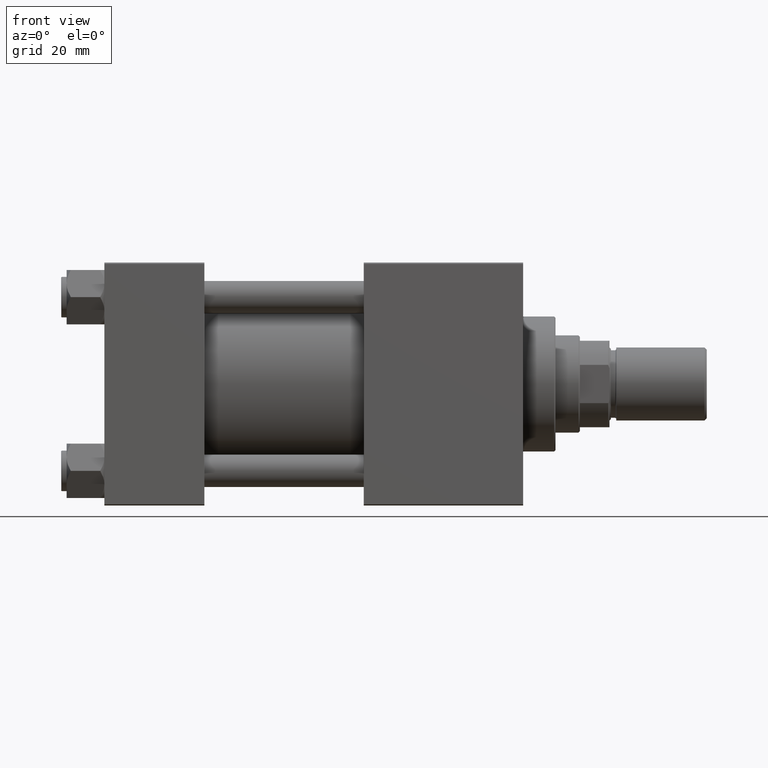
[diagram: clean part render]
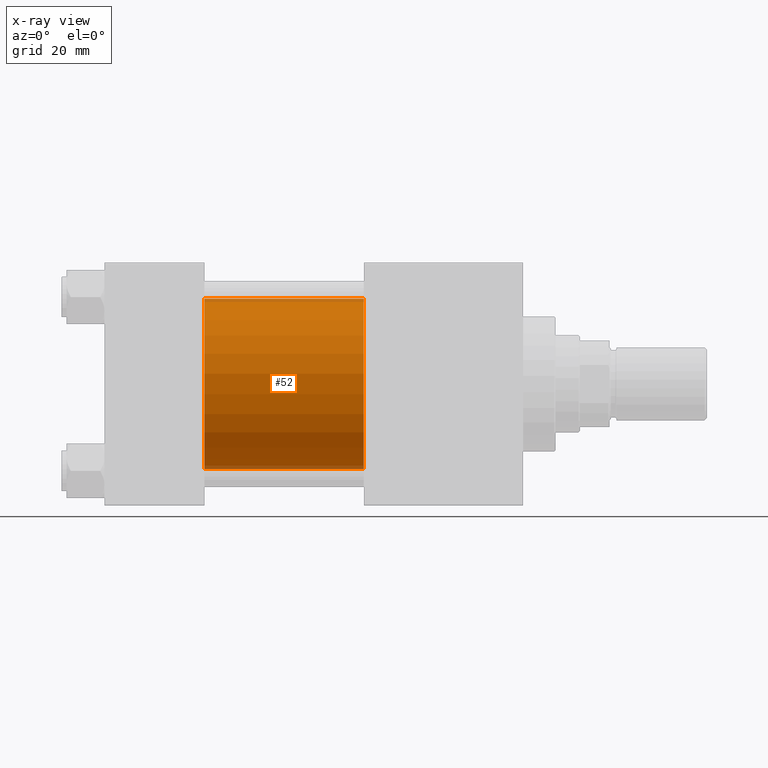
[diagram: x-ray — body ghosted, one internal face saturated and labeled with its STEP entity id]
A machine part, front view, then the same camera in x-ray: the body is ghosted and one INTERNAL B-rep face — a face not visible from any outside direction — is saturated and labeled: STEP entity #52.
In plain terms, the highlighted cylindrical surface (partial cylindrical patch) has radius 31.5 mm, axis along (-1, -0, -0).
Its self-contained STEP definition (entity closure, byte-faithful):
#52 = ADVANCED_FACE ( 'NONE', ( #7397 ), #520, .F. ) ;
#520 = CYLINDRICAL_SURFACE ( 'NONE', #9038, 31.50000000000000000 ) ;
#6581 = DIRECTION ( 'NONE',  ( 0.000000000000000000, 0.000000000000000000, -1.000000000000000000 ) ) ;
#7397 = FACE_OUTER_BOUND ( 'NONE', #41075, .T. ) ;
#7725 = EDGE_CURVE ( 'NONE', #16475, #33605, #28910, .T. ) ;
#9038 = AXIS2_PLACEMENT_3D ( 'NONE', #16104, #46377, #27897 ) ;
#10944 = CARTESIAN_POINT ( 'NONE',  ( 96.00000000000000000, -2.602085213965210642E-15, 31.50000000000000000 ) ) ;
#12121 = ORIENTED_EDGE ( 'NONE', *, *, #20094, .F. ) ;
#14007 = DIRECTION ( 'NONE',  ( -1.000000000000000000, -0.000000000000000000, -0.000000000000000000 ) ) ;
#16104 = CARTESIAN_POINT ( 'NONE',  ( 96.00000000000000000, -2.602085213965210642E-15, 0.000000000000000000 ) ) ;
#16475 = VERTEX_POINT ( 'NONE', #47986 ) ;
#18325 = VECTOR ( 'NONE', #14007, 1000.000000000000000 ) ;
#18409 = EDGE_CURVE ( 'NONE', #39293, #33605, #43702, .T. ) ;
#19274 = CIRCLE ( 'NONE', #45451, 31.50000000000000000 ) ;
#20094 = EDGE_CURVE ( 'NONE', #34307, #39293, #33532, .T. ) ;
#21314 = DIRECTION ( 'NONE',  ( 0.000000000000000000, 0.000000000000000000, -1.000000000000000000 ) ) ;
#21575 = CARTESIAN_POINT ( 'NONE',  ( 37.00000000000000000, -2.602085213965210642E-15, 0.000000000000000000 ) ) ;
#21941 = DIRECTION ( 'NONE',  ( 1.000000000000000000, 0.000000000000000000, 0.000000000000000000 ) ) ;
#22343 = AXIS2_PLACEMENT_3D ( 'NONE', #21575, #28535, #21314 ) ;
#23912 = ORIENTED_EDGE ( 'NONE', *, *, #26647, .T. ) ;
#25316 = CARTESIAN_POINT ( 'NONE',  ( 37.00000000000000000, 1.255552203348951850E-15, -31.50000000000000000 ) ) ;
#26647 = EDGE_CURVE ( 'NONE', #34307, #16475, #19274, .T. ) ;
#26842 = CARTESIAN_POINT ( 'NONE',  ( 96.00000000000000000, -2.602085213965210642E-15, 31.50000000000000000 ) ) ;
#27897 = DIRECTION ( 'NONE',  ( 0.000000000000000000, 0.000000000000000000, 1.000000000000000000 ) ) ;
#28535 = DIRECTION ( 'NONE',  ( 1.000000000000000000, 0.000000000000000000, 0.000000000000000000 ) ) ;
#28910 = LINE ( 'NONE', #37124, #18325 ) ;
#30416 = CARTESIAN_POINT ( 'NONE',  ( 96.00000000000000000, -2.602085213965210642E-15, 0.000000000000000000 ) ) ;
#33475 = ORIENTED_EDGE ( 'NONE', *, *, #18409, .F. ) ;
#33532 = LINE ( 'NONE', #10944, #44562 ) ;
#33605 = VERTEX_POINT ( 'NONE', #25316 ) ;
#34307 = VERTEX_POINT ( 'NONE', #26842 ) ;
#37124 = CARTESIAN_POINT ( 'NONE',  ( 96.00000000000000000, 1.255552203348951850E-15, -31.50000000000000000 ) ) ;
#37418 = ORIENTED_EDGE ( 'NONE', *, *, #7725, .T. ) ;
#39293 = VERTEX_POINT ( 'NONE', #43824 ) ;
#41075 = EDGE_LOOP ( 'NONE', ( #23912, #37418, #33475, #12121 ) ) ;
#41221 = DIRECTION ( 'NONE',  ( -1.000000000000000000, -0.000000000000000000, -0.000000000000000000 ) ) ;
#43702 = CIRCLE ( 'NONE', #22343, 31.50000000000000000 ) ;
#43824 = CARTESIAN_POINT ( 'NONE',  ( 37.00000000000000000, -2.602085213965210642E-15, 31.50000000000000000 ) ) ;
#44562 = VECTOR ( 'NONE', #41221, 1000.000000000000000 ) ;
#45451 = AXIS2_PLACEMENT_3D ( 'NONE', #30416, #21941, #6581 ) ;
#46377 = DIRECTION ( 'NONE',  ( -1.000000000000000000, -0.000000000000000000, -0.000000000000000000 ) ) ;
#47986 = CARTESIAN_POINT ( 'NONE',  ( 96.00000000000000000, 1.255552203348951850E-15, -31.50000000000000000 ) ) ;